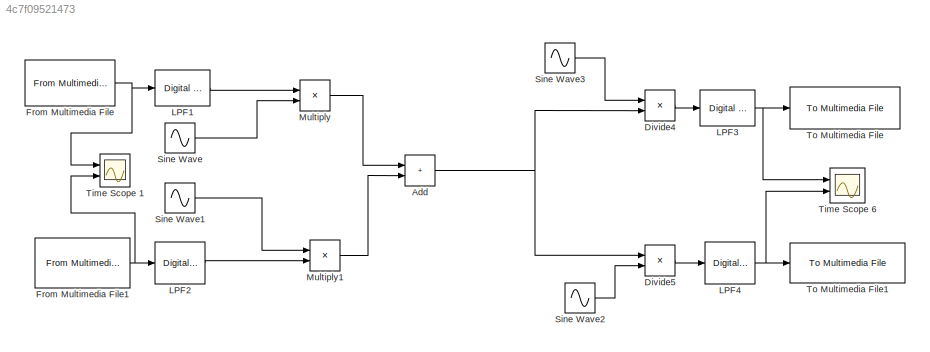
MODEL slx_4c7f09521473
KIND model
CONFIG AbsTol = auto
CONFIG EnableMultiTasking = off
CONFIG FixedStep = auto
CONFIG InitFcn = clc;\nclear all;\nclose all;\nfs=44100;\nts=1/fs;
CONFIG MaxStep = auto
CONFIG MinStep = auto
CONFIG RelTol = 1e-3
CONFIG SampleTimeConstraint = Unconstrained
CONFIG SolverName = VariableStepAuto
CONFIG StartTime = 0.0
CONFIG StopTime = 3
BLOCK [Sum] Add
  IconShape = rectangular
  Ports = [2, 1]
BLOCK [Product] Divide4
  Inputs = **
  Ports = [2, 1]
  SampleTime = ts
BLOCK [Product] Divide5
  Inputs = **
  Ports = [2, 1]
  SampleTime = ts
BLOCK [Reference] From Multimedia File  REF=dspvision/From Multimedia File
  Ports = [0, 1]
  SourceBlock = dspvision/From Multimedia File
  SourceProductBaseCode = DS,HW,VP
  SourceType = From Multimedia File
BLOCK [Reference] From Multimedia File1  REF=dspvision/From Multimedia File
  Ports = [0, 1]
  SourceBlock = dspvision/From Multimedia File
  SourceProductBaseCode = DS,HW,VP
  SourceType = From Multimedia File
BLOCK [Reference] LPF1  REF=dsparch4/Digital
Filter Design
  Ports = [1, 1]
  SourceBlock = dsparch4/Digital\nFilter Design
  SourceProductBaseCode = DS
  SourceType = Digital Filter Design
  UserDataPersistent = on
BLOCK [Reference] LPF2  REF=dsparch4/Digital
Filter Design
  Ports = [1, 1]
  SourceBlock = dsparch4/Digital\nFilter Design
  SourceProductBaseCode = DS
  SourceType = Digital Filter Design
  UserDataPersistent = on
BLOCK [Reference] LPF3  REF=dsparch4/Digital
Filter Design
  Ports = [1, 1]
  SourceBlock = dsparch4/Digital\nFilter Design
  SourceProductBaseCode = DS
  SourceType = Digital Filter Design
  UserDataPersistent = on
BLOCK [Reference] LPF4  REF=dsparch4/Digital
Filter Design
  Ports = [1, 1]
  SourceBlock = dsparch4/Digital\nFilter Design
  SourceProductBaseCode = DS
  SourceType = Digital Filter Design
  UserDataPersistent = on
BLOCK [Product] Multiply
  Inputs = **
  Ports = [2, 1]
  SampleTime = ts
BLOCK [Product] Multiply1
  Inputs = **
  Ports = [2, 1]
  SampleTime = ts
BLOCK [Sin] Sine Wave
  Frequency = 2*pi*6000
  Ports = [0, 1]
  SampleTime = ts
BLOCK [Sin] Sine Wave1
  Frequency = 2*pi*6000
  Phase = pi/2
  Ports = [0, 1]
  SampleTime = ts
BLOCK [Sin] Sine Wave2
  Amplitude = 2
  Frequency = 2*pi*6000
  Phase = pi/2
  Ports = [0, 1]
  SampleTime = ts
BLOCK [Sin] Sine Wave3
  Amplitude = 2
  Frequency = 2*pi*6000
  Ports = [0, 1]
  SampleTime = ts
BLOCK [Scope] Time Scope 1
  DefaultConfigurationName = spbscopes.TimeScopeBlockCfg
  Floating = off
  NumInputPorts = 2
  Ports = [2]
  ScopeSpecificationString = spbscopes.TimeScopeBlockCfg('CurrentConfiguration', extmgr.ConfigurationSet(extmgr.Configuration('Core','General UI',true),extmgr.Configuration('Core','Source UI',true),extmgr.Configuration('Sources','WiredSimulink',true),extmgr.Configuration('Visuals','Time Domain',true,'DisplayLayoutDimensions',[2 1],'DisplayPropertyDefaults',struct('YLabelReal','Amplitude','AxesColor',[0 0 0],'AxesTickColor',[0...<+1986ch>
  UserDataPersistent = on
BLOCK [Scope] Time Scope 6
  DefaultConfigurationName = spbscopes.TimeScopeBlockCfg
  Floating = off
  NumInputPorts = 2
  Ports = [2]
  ScopeSpecificationString = spbscopes.TimeScopeBlockCfg('CurrentConfiguration', extmgr.ConfigurationSet(extmgr.Configuration('Core','General UI',true),extmgr.Configuration('Core','Source UI',true),extmgr.Configuration('Sources','WiredSimulink',true,'DataLoggingVariableName','ScopeData1'),extmgr.Configuration('Visuals','Time Domain',true,'DisplayLayoutDimensions',[2 1],'DisplayPropertyDefaults',struct('YLabelReal','Amplitude'...<+2032ch>
  UserDataPersistent = on
BLOCK [Reference] To Multimedia File  REF=dspvision/To Multimedia File
  Ports = [1]
  SourceBlock = dspvision/To Multimedia File
  SourceProductBaseCode = DS,HW,VP
  SourceType = To Multimedia File
BLOCK [Reference] To Multimedia File1  REF=dspvision/To Multimedia File
  Ports = [1]
  SourceBlock = dspvision/To Multimedia File
  SourceProductBaseCode = DS,HW,VP
  SourceType = To Multimedia File
NET Add:1 -> Divide4:2, Divide5:1
LINE Divide4:1 -> LPF3:1
LINE Divide5:1 -> LPF4:1
NET From Multimedia File1:1 -> LPF2:1, Time Scope 1:2
NET From Multimedia File:1 -> LPF1:1, Time Scope 1:1
LINE LPF1:1 -> Multiply:1
LINE LPF2:1 -> Multiply1:2
NET LPF3:1 -> Time Scope 6:1, To Multimedia File:1
NET LPF4:1 -> Time Scope 6:2, To Multimedia File1:1
LINE Multiply1:1 -> Add:2
LINE Multiply:1 -> Add:1
LINE Sine Wave1:1 -> Multiply1:1
LINE Sine Wave2:1 -> Divide5:2
LINE Sine Wave3:1 -> Divide4:1
LINE Sine Wave:1 -> Multiply:2
note: NET lines group one-source signal fan-out (src -> all destinations, sorted); 1:1 wires keep LINE
